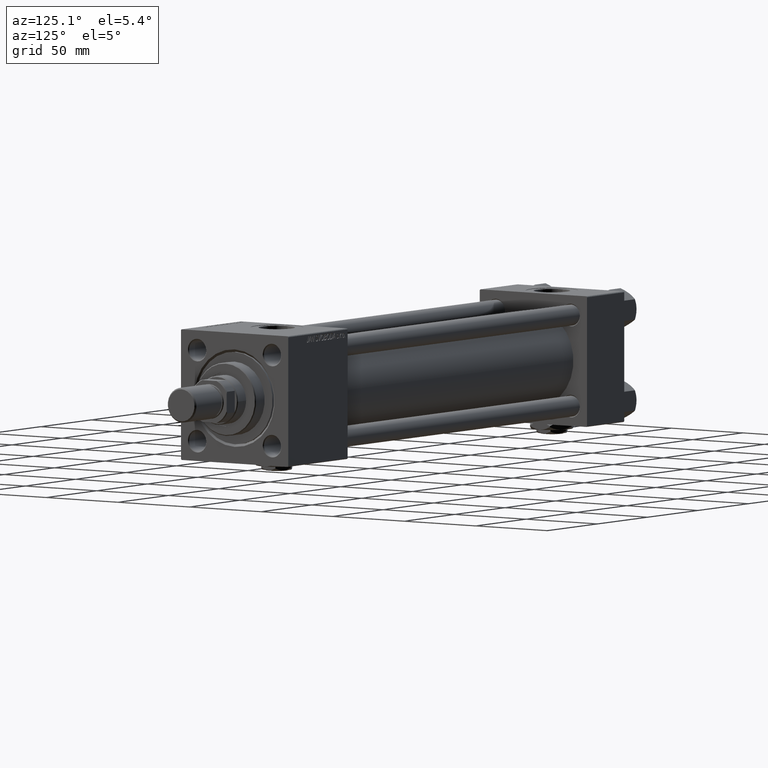
[diagram: clean part render]
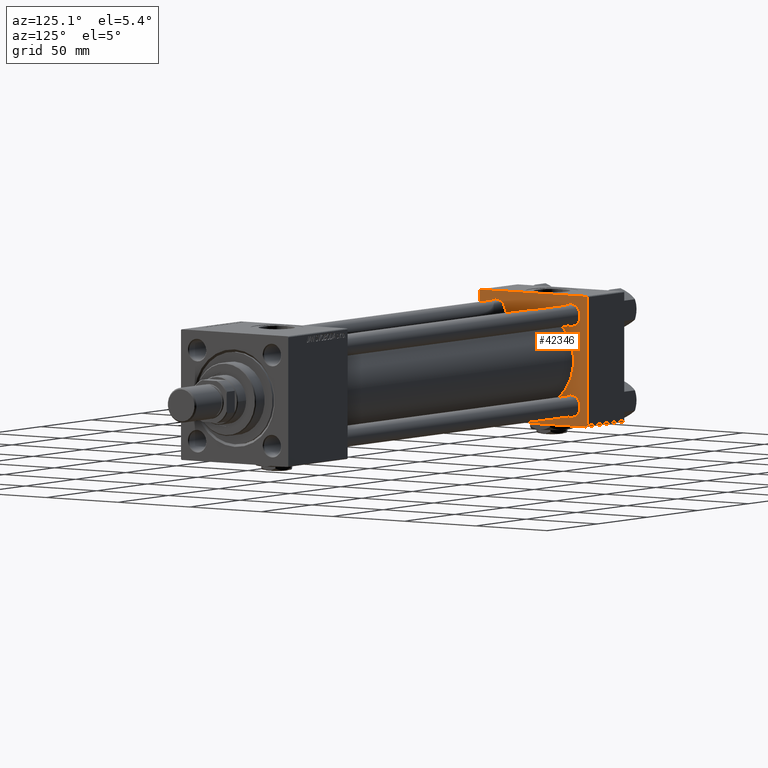
[diagram: same view with one face highlighted and labeled with its STEP entity id]
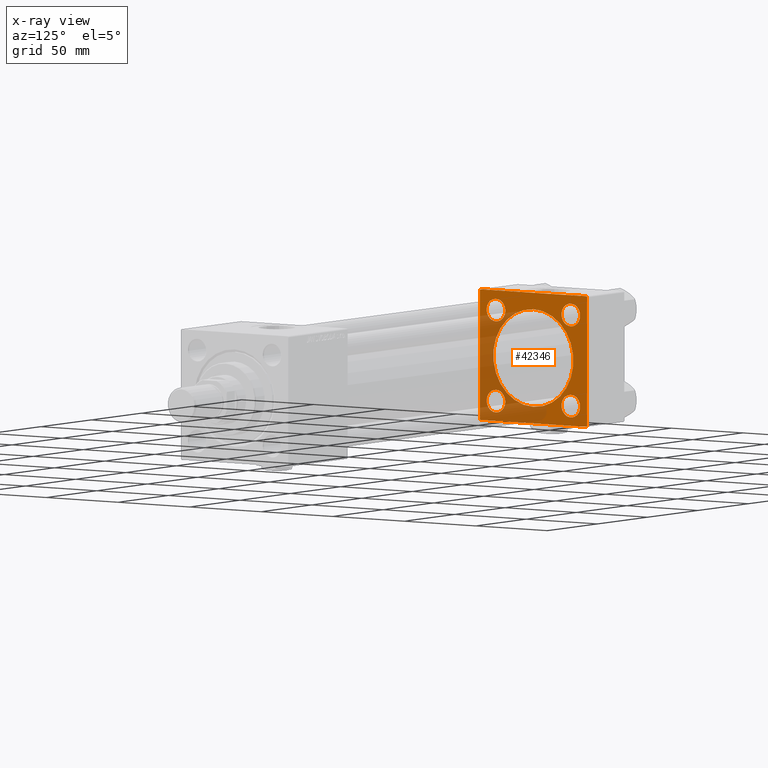
[diagram: x-ray of the same camera — body ghosted, the highlighted face saturated]
A machine part, auxiliary view. The second image highlights one B-rep face of the part: STEP entity #42346.
The next image is the same camera in x-ray: the body ghosted, the highlighted face saturated — about 39% of this face is hidden behind the body in this view.
In plain terms, the highlighted planar face has unit normal (-1, 0, 0).
Its self-contained STEP definition (entity closure, byte-faithful):
#28 = CARTESIAN_POINT ( 'NONE',  ( 37.00000000000000000, -37.50000000000000711, 36.99999999999999289 ) ) ;
#104 = DIRECTION ( 'NONE',  ( 0.000000000000000000, 0.000000000000000000, -1.000000000000000000 ) ) ;
#960 = CARTESIAN_POINT ( 'NONE',  ( 37.00000000000000000, -26.14999999999999147, -26.15000000000000924 ) ) ;
#1529 = CARTESIAN_POINT ( 'NONE',  ( 37.00000000000000000, 26.14999999999999858, -32.65000000000000568 ) ) ;
#1547 = EDGE_CURVE ( 'NONE', #13893, #30032, #49470, .T. ) ;
#1661 = EDGE_CURVE ( 'NONE', #7274, #10848, #34171, .T. ) ;
#1681 = EDGE_CURVE ( 'NONE', #48735, #50778, #14963, .T. ) ;
#1988 = ORIENTED_EDGE ( 'NONE', *, *, #46057, .T. ) ;
#2151 = ORIENTED_EDGE ( 'NONE', *, *, #1661, .T. ) ;
#2492 = ORIENTED_EDGE ( 'NONE', *, *, #47794, .T. ) ;
#2986 = CARTESIAN_POINT ( 'NONE',  ( 37.00000000000000000, 0.000000000000000000, 0.000000000000000000 ) ) ;
#3453 = DIRECTION ( 'NONE',  ( -1.000000000000000000, 0.000000000000000000, -0.000000000000000000 ) ) ;
#3519 = PLANE ( 'NONE',  #49032 ) ;
#3584 = DIRECTION ( 'NONE',  ( 1.000000000000000000, -0.000000000000000000, 0.000000000000000000 ) ) ;
#3760 = DIRECTION ( 'NONE',  ( 0.000000000000000000, 0.000000000000000000, 1.000000000000000000 ) ) ;
#4038 = VECTOR ( 'NONE', #15679, 1000.000000000000000 ) ;
#4221 = LINE ( 'NONE', #17010, #42387 ) ;
#4849 = ORIENTED_EDGE ( 'NONE', *, *, #50794, .T. ) ;
#5101 = AXIS2_PLACEMENT_3D ( 'NONE', #47526, #7567, #51534 ) ;
#5232 = ORIENTED_EDGE ( 'NONE', *, *, #19196, .T. ) ;
#6141 = CARTESIAN_POINT ( 'NONE',  ( 37.00000000000000000, 26.14999999999999858, 19.64999999999999858 ) ) ;
#6624 = DIRECTION ( 'NONE',  ( 1.000000000000000000, -0.000000000000000000, 0.000000000000000000 ) ) ;
#6655 = EDGE_LOOP ( 'NONE', ( #34431, #45424, #24904, #51481, #2492, #45103, #25060, #1988 ) ) ;
#7274 = VERTEX_POINT ( 'NONE', #47605 ) ;
#7522 = DIRECTION ( 'NONE',  ( -1.000000000000000000, 0.000000000000000000, -0.000000000000000000 ) ) ;
#7567 = DIRECTION ( 'NONE',  ( -1.000000000000000000, 0.000000000000000000, -0.000000000000000000 ) ) ;
#7746 = VERTEX_POINT ( 'NONE', #42160 ) ;
#7879 = EDGE_CURVE ( 'NONE', #41884, #24024, #41252, .T. ) ;
#8116 = CARTESIAN_POINT ( 'NONE',  ( 37.00000000000000000, 37.49999999999999289, 37.50000000000000000 ) ) ;
#8171 = ORIENTED_EDGE ( 'NONE', *, *, #15099, .F. ) ;
#8455 = DIRECTION ( 'NONE',  ( 0.000000000000000000, 0.000000000000000000, 1.000000000000000000 ) ) ;
#8495 = CIRCLE ( 'NONE', #5101, 6.499999999999953815 ) ;
#9144 = EDGE_CURVE ( 'NONE', #7746, #20525, #25984, .T. ) ;
#9364 = EDGE_LOOP ( 'NONE', ( #46617, #39740 ) ) ;
#9590 = EDGE_CURVE ( 'NONE', #37696, #41895, #34442, .T. ) ;
#9668 = VERTEX_POINT ( 'NONE', #27793 ) ;
#9923 = CIRCLE ( 'NONE', #37992, 6.499999999999946709 ) ;
#10766 = VECTOR ( 'NONE', #104, 1000.000000000000000 ) ;
#10848 = VERTEX_POINT ( 'NONE', #6141 ) ;
#10961 = CARTESIAN_POINT ( 'NONE',  ( 37.00000000000000000, 26.14999999999999858, 26.15000000000000213 ) ) ;
#11854 = ORIENTED_EDGE ( 'NONE', *, *, #35775, .F. ) ;
#11855 = CIRCLE ( 'NONE', #20389, 28.00000000000000000 ) ;
#12120 = ORIENTED_EDGE ( 'NONE', *, *, #34044, .T. ) ;
#12487 = CARTESIAN_POINT ( 'NONE',  ( 37.00000000000000711, 8.269258236473784371E-16, -28.00000000000000000 ) ) ;
#12836 = DIRECTION ( 'NONE',  ( 0.000000000000000000, -0.7071067811865474617, 0.7071067811865474617 ) ) ;
#12945 = VECTOR ( 'NONE', #27756, 1000.000000000000114 ) ;
#13766 = AXIS2_PLACEMENT_3D ( 'NONE', #10961, #35731, #3760 ) ;
#13884 = ORIENTED_EDGE ( 'NONE', *, *, #7879, .T. ) ;
#13893 = VERTEX_POINT ( 'NONE', #17380 ) ;
#14050 = VECTOR ( 'NONE', #26216, 1000.000000000000000 ) ;
#14107 = VECTOR ( 'NONE', #12836, 1000.000000000000114 ) ;
#14350 = CARTESIAN_POINT ( 'NONE',  ( 37.00000000000000711, -2.602085213965210642E-15, 0.000000000000000000 ) ) ;
#14963 = LINE ( 'NONE', #27230, #12945 ) ;
#14974 = CARTESIAN_POINT ( 'NONE',  ( 37.00000000000000000, 26.14999999999999858, -26.15000000000000213 ) ) ;
#15099 = EDGE_CURVE ( 'NONE', #19729, #30716, #21507, .T. ) ;
#15679 = DIRECTION ( 'NONE',  ( 0.000000000000000000, 0.7071067811865524577, -0.7071067811865426878 ) ) ;
#15709 = DIRECTION ( 'NONE',  ( 0.000000000000000000, 0.000000000000000000, 1.000000000000000000 ) ) ;
#15778 = FACE_BOUND ( 'NONE', #40256, .T. ) ;
#16819 = CARTESIAN_POINT ( 'NONE',  ( 37.00000000000000000, 36.99999999999999289, 37.50000000000000000 ) ) ;
#16922 = AXIS2_PLACEMENT_3D ( 'NONE', #19171, #3453, #15709 ) ;
#17010 = CARTESIAN_POINT ( 'NONE',  ( 37.00000000000000000, 37.49999999999999289, 37.50000000000000000 ) ) ;
#17075 = LINE ( 'NONE', #17326, #49352 ) ;
#17326 = CARTESIAN_POINT ( 'NONE',  ( 37.00000000000000000, 37.49999999999999289, -37.50000000000000000 ) ) ;
#17380 = CARTESIAN_POINT ( 'NONE',  ( 37.00000000000000000, -26.14999999999999147, 19.65000000000005542 ) ) ;
#17491 = DIRECTION ( 'NONE',  ( 0.000000000000000000, 0.000000000000000000, 1.000000000000000000 ) ) ;
#17806 = CARTESIAN_POINT ( 'NONE',  ( 37.00000000000000000, -37.00000000000000711, 37.49999999999999289 ) ) ;
#18262 = DIRECTION ( 'NONE',  ( -1.000000000000000000, 0.000000000000000000, -0.000000000000000000 ) ) ;
#19171 = CARTESIAN_POINT ( 'NONE',  ( 37.00000000000000000, 26.14999999999999858, -26.15000000000000213 ) ) ;
#19196 = EDGE_CURVE ( 'NONE', #10848, #7274, #35198, .T. ) ;
#19252 = FACE_BOUND ( 'NONE', #26724, .T. ) ;
#19729 = VERTEX_POINT ( 'NONE', #12487 ) ;
#19938 = AXIS2_PLACEMENT_3D ( 'NONE', #29976, #30752, #34715 ) ;
#20224 = DIRECTION ( 'NONE',  ( 0.000000000000000000, -1.000000000000000000, -9.251858538542971581E-17 ) ) ;
#20389 = AXIS2_PLACEMENT_3D ( 'NONE', #52078, #3584, #52597 ) ;
#20466 = CARTESIAN_POINT ( 'NONE',  ( 37.00000000000000711, -2.602085213965210642E-15, 28.00000000000000000 ) ) ;
#20525 = VERTEX_POINT ( 'NONE', #41066 ) ;
#21502 = VERTEX_POINT ( 'NONE', #33611 ) ;
#21507 = CIRCLE ( 'NONE', #39306, 28.00000000000000000 ) ;
#22075 = CARTESIAN_POINT ( 'NONE',  ( 37.00000000000000000, -37.50000000000000000, -37.00000000000003553 ) ) ;
#22693 = CARTESIAN_POINT ( 'NONE',  ( 37.00000000000000000, -26.14999999999999147, 26.15000000000000924 ) ) ;
#22893 = DIRECTION ( 'NONE',  ( 0.000000000000000000, 0.000000000000000000, 1.000000000000000000 ) ) ;
#24024 = VERTEX_POINT ( 'NONE', #41629 ) ;
#24206 = CARTESIAN_POINT ( 'NONE',  ( 37.00000000000000000, -37.00000000000002132, -37.50000000000000711 ) ) ;
#24904 = ORIENTED_EDGE ( 'NONE', *, *, #43475, .F. ) ;
#25060 = ORIENTED_EDGE ( 'NONE', *, *, #9590, .T. ) ;
#25202 = CARTESIAN_POINT ( 'NONE',  ( 37.00000000000000000, -37.00000000000002132, -37.50000000000000711 ) ) ;
#25984 = CIRCLE ( 'NONE', #51476, 6.499999999999946709 ) ;
#26216 = DIRECTION ( 'NONE',  ( 0.000000000000000000, 9.251858538542971581E-17, -1.000000000000000000 ) ) ;
#26724 = EDGE_LOOP ( 'NONE', ( #5232, #2151 ) ) ;
#27230 = CARTESIAN_POINT ( 'NONE',  ( 37.00000000000000000, 37.49999999999999289, -36.99999999999998579 ) ) ;
#27756 = DIRECTION ( 'NONE',  ( -0.000000000000000000, 0.7071067811865474617, 0.7071067811865474617 ) ) ;
#27793 = CARTESIAN_POINT ( 'NONE',  ( 37.00000000000000000, 37.49999999999999289, 37.00000000000000000 ) ) ;
#28546 = LINE ( 'NONE', #16819, #14107 ) ;
#28708 = CARTESIAN_POINT ( 'NONE',  ( 37.00000000000000000, -26.14999999999999147, -26.15000000000000924 ) ) ;
#29616 = DIRECTION ( 'NONE',  ( -0.000000000000000000, -0.7071067811865474617, -0.7071067811865474617 ) ) ;
#29976 = CARTESIAN_POINT ( 'NONE',  ( 37.00000000000000000, 26.14999999999999858, 26.15000000000000213 ) ) ;
#30032 = VERTEX_POINT ( 'NONE', #30450 ) ;
#30450 = CARTESIAN_POINT ( 'NONE',  ( 37.00000000000000000, -26.14999999999999147, 32.64999999999996305 ) ) ;
#30716 = VERTEX_POINT ( 'NONE', #20466 ) ;
#30752 = DIRECTION ( 'NONE',  ( -1.000000000000000000, 0.000000000000000000, -0.000000000000000000 ) ) ;
#31781 = FACE_BOUND ( 'NONE', #34748, .T. ) ;
#32026 = DIRECTION ( 'NONE',  ( -1.000000000000000000, 0.000000000000000000, -0.000000000000000000 ) ) ;
#32475 = EDGE_LOOP ( 'NONE', ( #11854, #8171 ) ) ;
#33611 = CARTESIAN_POINT ( 'NONE',  ( 37.00000000000000000, 36.99999999999999289, 37.50000000000000000 ) ) ;
#33814 = CARTESIAN_POINT ( 'NONE',  ( 37.00000000000000000, -37.50000000000000711, 36.99999999999999289 ) ) ;
#34044 = EDGE_CURVE ( 'NONE', #24024, #41884, #44970, .T. ) ;
#34171 = CIRCLE ( 'NONE', #13766, 6.500000000000002665 ) ;
#34431 = ORIENTED_EDGE ( 'NONE', *, *, #40317, .F. ) ;
#34442 = LINE ( 'NONE', #38958, #14050 ) ;
#34715 = DIRECTION ( 'NONE',  ( 0.000000000000000000, 0.000000000000000000, 1.000000000000000000 ) ) ;
#34748 = EDGE_LOOP ( 'NONE', ( #41900, #4849 ) ) ;
#35198 = CIRCLE ( 'NONE', #19938, 6.500000000000002665 ) ;
#35731 = DIRECTION ( 'NONE',  ( -1.000000000000000000, 0.000000000000000000, -0.000000000000000000 ) ) ;
#35775 = EDGE_CURVE ( 'NONE', #30716, #19729, #11855, .T. ) ;
#36616 = LINE ( 'NONE', #8116, #10766 ) ;
#36972 = LINE ( 'NONE', #24206, #4038 ) ;
#37563 = DIRECTION ( 'NONE',  ( 0.000000000000000000, -1.000000000000000000, -9.251858538542972814E-17 ) ) ;
#37696 = VERTEX_POINT ( 'NONE', #33814 ) ;
#37818 = AXIS2_PLACEMENT_3D ( 'NONE', #14974, #32026, #39994 ) ;
#37992 = AXIS2_PLACEMENT_3D ( 'NONE', #960, #18262, #17491 ) ;
#38808 = VECTOR ( 'NONE', #29616, 1000.000000000000114 ) ;
#38916 = DIRECTION ( 'NONE',  ( -1.000000000000000000, 0.000000000000000000, -0.000000000000000000 ) ) ;
#38958 = CARTESIAN_POINT ( 'NONE',  ( 37.00000000000000000, -37.50000000000000711, 37.49999999999999289 ) ) ;
#39306 = AXIS2_PLACEMENT_3D ( 'NONE', #14350, #6624, #22893 ) ;
#39475 = FACE_OUTER_BOUND ( 'NONE', #6655, .T. ) ;
#39740 = ORIENTED_EDGE ( 'NONE', *, *, #9144, .T. ) ;
#39777 = VERTEX_POINT ( 'NONE', #25202 ) ;
#39994 = DIRECTION ( 'NONE',  ( 0.000000000000000000, 0.000000000000000000, 1.000000000000000000 ) ) ;
#40256 = EDGE_LOOP ( 'NONE', ( #13884, #12120 ) ) ;
#40317 = EDGE_CURVE ( 'NONE', #48735, #39777, #17075, .T. ) ;
#40943 = AXIS2_PLACEMENT_3D ( 'NONE', #22693, #38916, #50394 ) ;
#41063 = LINE ( 'NONE', #28, #38808 ) ;
#41066 = CARTESIAN_POINT ( 'NONE',  ( 37.00000000000000000, -26.14999999999999147, -32.64999999999995595 ) ) ;
#41099 = EDGE_CURVE ( 'NONE', #9668, #21502, #28546, .T. ) ;
#41252 = CIRCLE ( 'NONE', #37818, 6.500000000000002665 ) ;
#41629 = CARTESIAN_POINT ( 'NONE',  ( 37.00000000000000000, 26.14999999999999858, -19.65000000000000213 ) ) ;
#41884 = VERTEX_POINT ( 'NONE', #1529 ) ;
#41895 = VERTEX_POINT ( 'NONE', #22075 ) ;
#41900 = ORIENTED_EDGE ( 'NONE', *, *, #1547, .T. ) ;
#41916 = VERTEX_POINT ( 'NONE', #17806 ) ;
#42160 = CARTESIAN_POINT ( 'NONE',  ( 37.00000000000000000, -26.14999999999999147, -19.65000000000006253 ) ) ;
#42346 = ADVANCED_FACE ( 'NONE', ( #44526, #15778, #31781, #19252, #47751, #39475 ), #3519, .F. ) ;
#42381 = EDGE_CURVE ( 'NONE', #41916, #37696, #41063, .T. ) ;
#42387 = VECTOR ( 'NONE', #20224, 1000.000000000000000 ) ;
#43192 = EDGE_CURVE ( 'NONE', #20525, #7746, #9923, .T. ) ;
#43475 = EDGE_CURVE ( 'NONE', #9668, #50778, #36616, .T. ) ;
#44526 = FACE_BOUND ( 'NONE', #9364, .T. ) ;
#44935 = DIRECTION ( 'NONE',  ( -1.000000000000000000, 0.000000000000000000, -0.000000000000000000 ) ) ;
#44970 = CIRCLE ( 'NONE', #16922, 6.500000000000002665 ) ;
#45103 = ORIENTED_EDGE ( 'NONE', *, *, #42381, .T. ) ;
#45424 = ORIENTED_EDGE ( 'NONE', *, *, #1681, .T. ) ;
#45957 = CARTESIAN_POINT ( 'NONE',  ( 37.00000000000000000, 37.49999999999999289, -36.99999999999998579 ) ) ;
#46057 = EDGE_CURVE ( 'NONE', #41895, #39777, #36972, .T. ) ;
#46617 = ORIENTED_EDGE ( 'NONE', *, *, #43192, .T. ) ;
#47526 = CARTESIAN_POINT ( 'NONE',  ( 37.00000000000000000, -26.14999999999999147, 26.15000000000000924 ) ) ;
#47605 = CARTESIAN_POINT ( 'NONE',  ( 37.00000000000000000, 26.14999999999999858, 32.65000000000001279 ) ) ;
#47751 = FACE_BOUND ( 'NONE', #32475, .T. ) ;
#47794 = EDGE_CURVE ( 'NONE', #21502, #41916, #4221, .T. ) ;
#48735 = VERTEX_POINT ( 'NONE', #49445 ) ;
#49032 = AXIS2_PLACEMENT_3D ( 'NONE', #2986, #7522, #52015 ) ;
#49352 = VECTOR ( 'NONE', #37563, 1000.000000000000000 ) ;
#49445 = CARTESIAN_POINT ( 'NONE',  ( 37.00000000000000000, 36.99999999999997868, -37.50000000000000000 ) ) ;
#49470 = CIRCLE ( 'NONE', #40943, 6.499999999999953815 ) ;
#50394 = DIRECTION ( 'NONE',  ( 0.000000000000000000, 0.000000000000000000, 1.000000000000000000 ) ) ;
#50778 = VERTEX_POINT ( 'NONE', #45957 ) ;
#50794 = EDGE_CURVE ( 'NONE', #30032, #13893, #8495, .T. ) ;
#51476 = AXIS2_PLACEMENT_3D ( 'NONE', #28708, #44935, #8455 ) ;
#51481 = ORIENTED_EDGE ( 'NONE', *, *, #41099, .T. ) ;
#51534 = DIRECTION ( 'NONE',  ( 0.000000000000000000, 0.000000000000000000, 1.000000000000000000 ) ) ;
#52015 = DIRECTION ( 'NONE',  ( -0.000000000000000000, 0.000000000000000000, 1.000000000000000000 ) ) ;
#52078 = CARTESIAN_POINT ( 'NONE',  ( 37.00000000000000711, -2.602085213965210642E-15, 0.000000000000000000 ) ) ;
#52597 = DIRECTION ( 'NONE',  ( 0.000000000000000000, 0.000000000000000000, 1.000000000000000000 ) ) ;